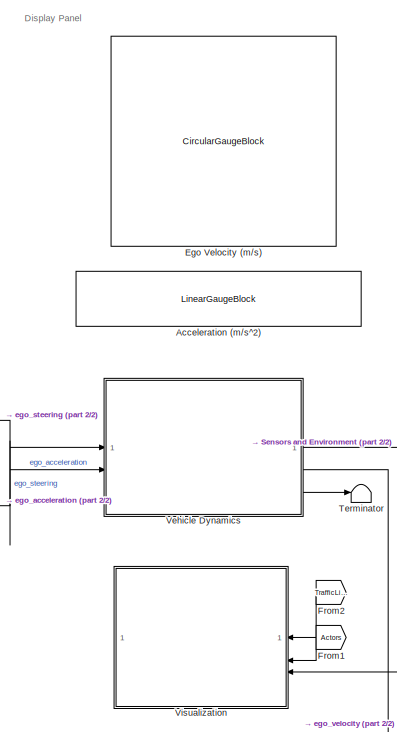
[diagram: root canvas - part 1/2, right side, full height]
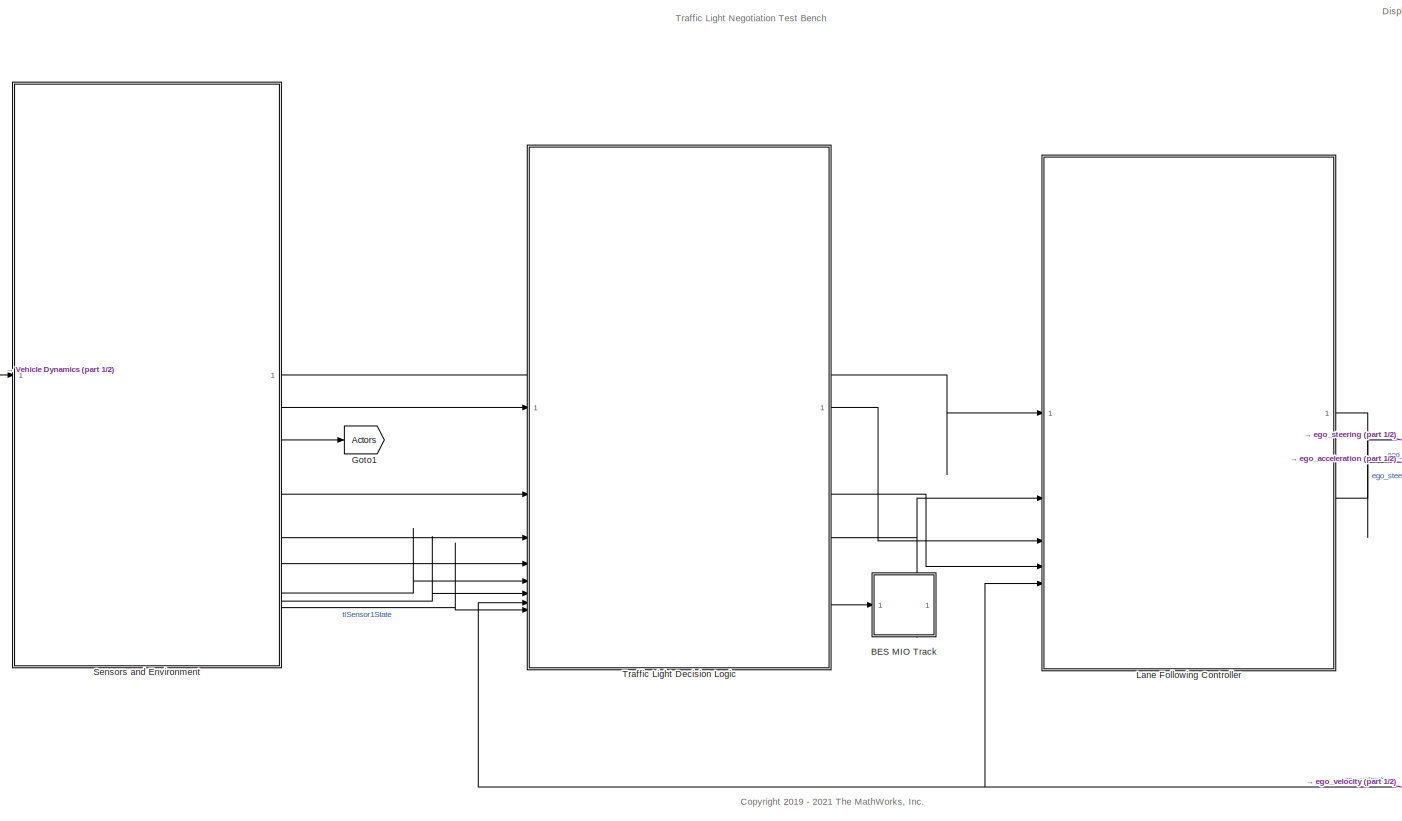
[diagram: root canvas - part 2/2, most of the canvas]
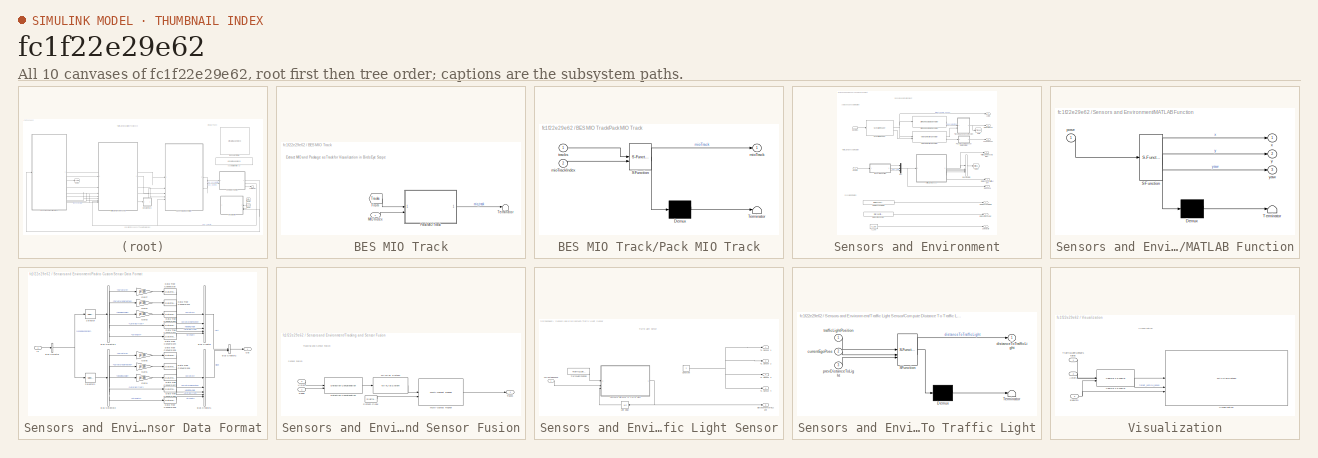
[diagram: thumbnail index - all 10 canvases of the model, root first then tree order]
MODEL slx_fc1f22e29e62
KIND model
CONFIG AbsTol = auto
CONFIG EnableMultiTasking = on
CONFIG FixedStep = 0.001
CONFIG MaxStep = auto
CONFIG MinStep = auto
CONFIG RelTol = 1e-8
CONFIG SampleTimeConstraint = Unconstrained
CONFIG SolverName = ode23tb
CONFIG StartTime = 0.0
CONFIG StopTime = scenario.StopTime
WORKSPACE source: mxarray member
WORKSPACE green = 'green'
BLOCK [LinearGaugeBlock] Acceleration (m//s^2)
  LabelPosition = Hide
  ScaleMax = 6
  ScaleMin = -6
BLOCK [SubSystem] BES MIO Track
BLOCK [From] BES MIO Track/From
  GotoTag = Tracks
  TagVisibility = global
BLOCK [Inport] BES MIO Track/MIO Index
BLOCK [SubSystem] BES MIO Track/Pack MIO Track
  ErrorFcn = Stateflow.Translate.translate
  PermitHierarchicalResolution = ExplicitOnly
  SFBlockType = MATLAB Function
  TreatAsAtomicUnit = on
BLOCK [Demux] BES MIO Track/Pack MIO Track/ Demux 
  Outputs = 1
BLOCK [S-Function] BES MIO Track/Pack MIO Track/ SFunction 
  EnableBusSupport = on
  FunctionName = sf_sfun
  PortCounts = [2 2]
  SFcnIsStateOwnerBlock = off
  SFunctionDeploymentMode = off
  Tag = Stateflow S-Function 1
BLOCK [Terminator] BES MIO Track/Pack MIO Track/ Terminator 
BLOCK [Outport] BES MIO Track/Pack MIO Track/mioTrack
  VectorParamsAs1DForOutWhenUnconnected = off
BLOCK [Inport] BES MIO Track/Pack MIO Track/mioTrackIndex
  Port = 2
BLOCK [Inport] BES MIO Track/Pack MIO Track/tracks
BLOCK [Terminator] BES MIO Track/Terminator
BLOCK [CircularGaugeBlock] Ego Velocity (m//s)
  LabelPosition = Hide
  ScaleMax = 50
BLOCK [From] From1
  GotoTag = Actors
  NameLocation = top
BLOCK [From] From2
  GotoTag = TrafficLightGroupDetections
  NameLocation = top
  TagVisibility = global
BLOCK [Goto] Goto1
  GotoTag = Actors
BLOCK [ModelReference] Lane Following Controller
  ModelNameDialog = LaneFollowingController.slx
  ModelReferenceVersion = 6.1
  PortSchema = {"entries":[{"content":{"sides":[{"content":{"connectorIds":["In1","In2","In4","In3","In5"]},"type":"ConnectorPlacement.EquallySpacedRectSide","uuid":"258a64d3-b85d-4414-a7dd-6950fa9dc812"},{"content":{"connectorIds":["Out1","Out2"],"side":"RIGHT"},"type":"ConnectorPlacement.EquallySpacedRectSide","uuid":"eccca8be-1d69-4bb6-a162-74a40ef18f77"},{"content":{"connectorIds":[],"side":"TOP"},"type":"Co...<+271ch>
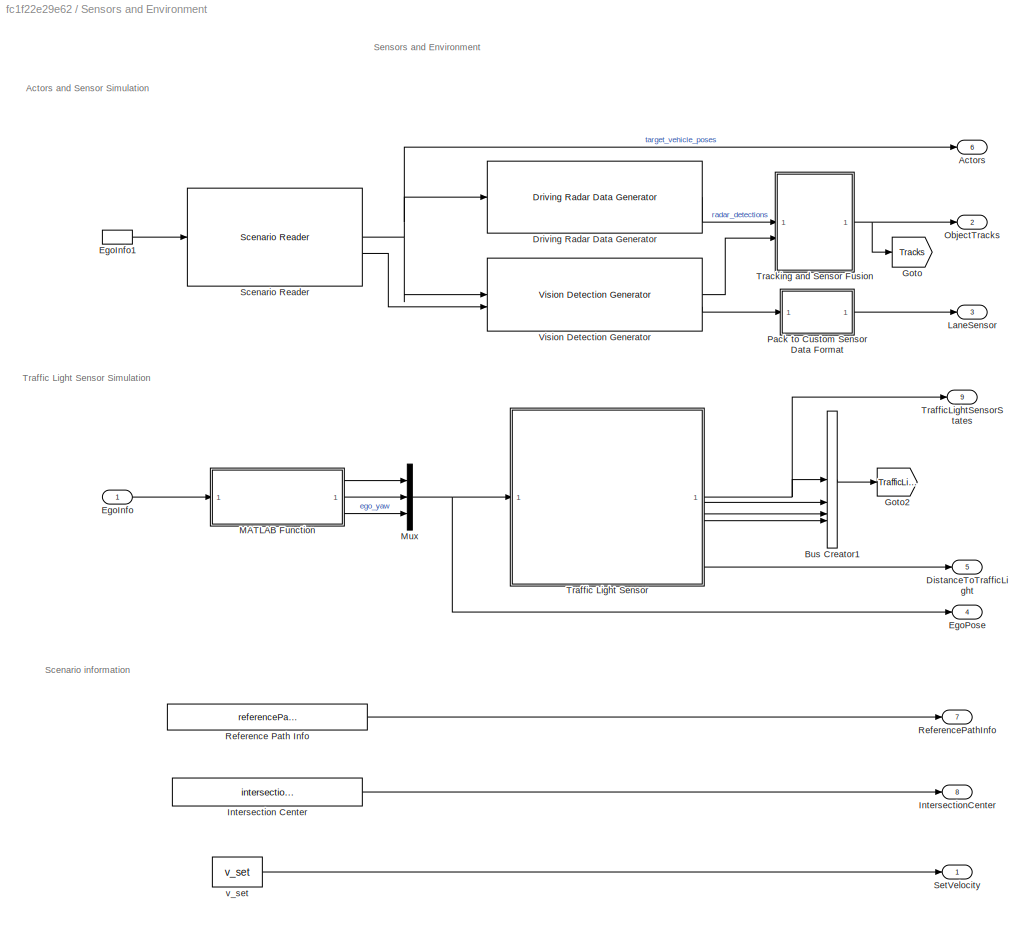
BLOCK [SubSystem] Sensors and Environment
BLOCK [Outport] Sensors and Environment/Actors
  Port = 6
BLOCK [BusCreator] Sensors and Environment/Bus Creator1
  DisplayOption = bar
  InheritFromInputs = on
  Inputs = 4
BLOCK [Outport] Sensors and Environment/DistanceToTrafficLight
  Port = 5
BLOCK [Reference] Sensors and Environment/Driving Radar Data Generator  REF=drivingscenarioandsensors/Driving Radar Data Generator
  SourceBlock = drivingscenarioandsensors/Driving Radar Data Generator
  SourceType = drivingRadarDataGenerator
BLOCK [Inport] Sensors and Environment/EgoInfo
BLOCK [InportShadow] Sensors and Environment/EgoInfo1
BLOCK [Outport] Sensors and Environment/EgoPose
  Port = 4
BLOCK [Goto] Sensors and Environment/Goto
  GotoTag = Tracks
  TagVisibility = global
BLOCK [Goto] Sensors and Environment/Goto2
  GotoTag = TrafficLightGroupDetections
  TagVisibility = global
BLOCK [Constant] Sensors and Environment/Intersection Center
  AttributesFormatString = ------------------------------\n   Value = %<Value>
  SampleTime = Ts
  Value = intersectionInfo.intersectionCenter
BLOCK [Outport] Sensors and Environment/IntersectionCenter
  Port = 8
BLOCK [Outport] Sensors and Environment/LaneSensor
  Port = 3
  VectorParamsAs1DForOutWhenUnconnected = off
BLOCK [SubSystem] Sensors and Environment/MATLAB Function
  ErrorFcn = Stateflow.Translate.translate
  PermitHierarchicalResolution = ExplicitOnly
  SFBlockType = MATLAB Function
  TreatAsAtomicUnit = on
BLOCK [Demux] Sensors and Environment/MATLAB Function/ Demux 
  Outputs = 1
BLOCK [S-Function] Sensors and Environment/MATLAB Function/ SFunction 
  EnableBusSupport = on
  FunctionName = sf_sfun
  PortCounts = [1 4]
  SFcnIsStateOwnerBlock = off
  SFunctionDeploymentMode = off
  Tag = Stateflow S-Function 2
BLOCK [Terminator] Sensors and Environment/MATLAB Function/ Terminator 
BLOCK [Inport] Sensors and Environment/MATLAB Function/pose
BLOCK [Outport] Sensors and Environment/MATLAB Function/x
BLOCK [Outport] Sensors and Environment/MATLAB Function/y
  Port = 2
BLOCK [Outport] Sensors and Environment/MATLAB Function/yaw
  Port = 3
BLOCK [Mux] Sensors and Environment/Mux
  DisplayOption = bar
  Inputs = 3
BLOCK [Outport] Sensors and Environment/ObjectTracks
  Port = 2
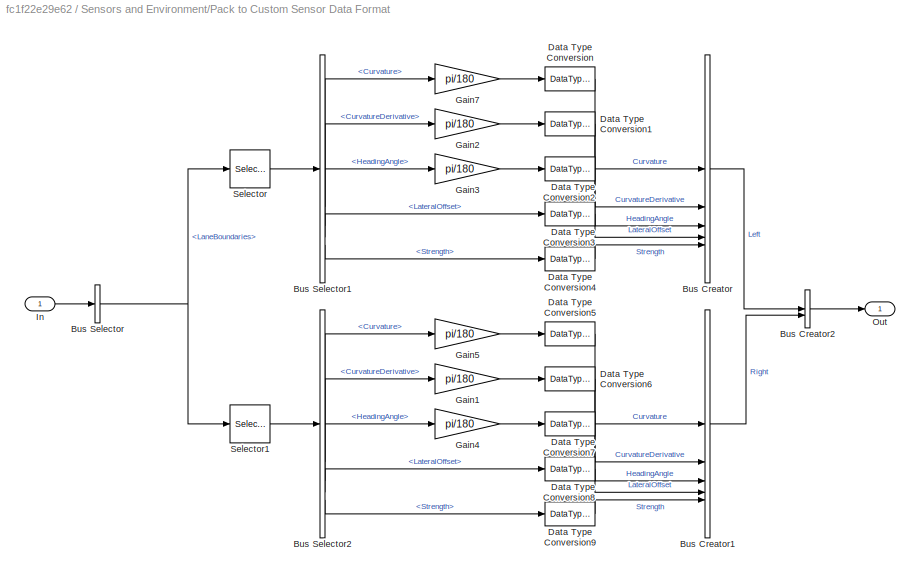
BLOCK [SubSystem] Sensors and Environment/Pack to Custom Sensor Data Format
BLOCK [BusCreator] Sensors and Environment/Pack to Custom Sensor Data Format/Bus Creator
  DisplayOption = bar
  InheritFromInputs = on
  Inputs = Curvature,CurvatureDerivative,HeadingAngle,LateralOffset,Strength
  OutDataTypeStr = Bus: LaneSensorBoundaries
BLOCK [BusCreator] Sensors and Environment/Pack to Custom Sensor Data Format/Bus Creator1
  DisplayOption = bar
  InheritFromInputs = on
  Inputs = Curvature,CurvatureDerivative,HeadingAngle,LateralOffset,Strength
  OutDataTypeStr = Bus: LaneSensorBoundaries
BLOCK [BusCreator] Sensors and Environment/Pack to Custom Sensor Data Format/Bus Creator2
  DisplayOption = bar
  InheritFromInputs = on
  Inputs = Left,Right
  OutDataTypeStr = Bus: LaneSensor
BLOCK [BusSelector] Sensors and Environment/Pack to Custom Sensor Data Format/Bus Selector
  OutputSignals = LaneBoundaries
BLOCK [BusSelector] Sensors and Environment/Pack to Custom Sensor Data Format/Bus Selector1
  OutputSignals = Curvature,CurvatureDerivative,HeadingAngle,LateralOffset,Strength
BLOCK [BusSelector] Sensors and Environment/Pack to Custom Sensor Data Format/Bus Selector2
  OutputSignals = Curvature,CurvatureDerivative,HeadingAngle,LateralOffset,Strength
BLOCK [DataTypeConversion] Sensors and Environment/Pack to Custom Sensor Data Format/Data Type Conversion
  RndMeth = Floor
  SaturateOnIntegerOverflow = off
BLOCK [DataTypeConversion] Sensors and Environment/Pack to Custom Sensor Data Format/Data Type Conversion1
  RndMeth = Floor
  SaturateOnIntegerOverflow = off
BLOCK [DataTypeConversion] Sensors and Environment/Pack to Custom Sensor Data Format/Data Type Conversion2
  RndMeth = Floor
  SaturateOnIntegerOverflow = off
BLOCK [DataTypeConversion] Sensors and Environment/Pack to Custom Sensor Data Format/Data Type Conversion3
  RndMeth = Floor
  SaturateOnIntegerOverflow = off
BLOCK [DataTypeConversion] Sensors and Environment/Pack to Custom Sensor Data Format/Data Type Conversion4
  RndMeth = Floor
  SaturateOnIntegerOverflow = off
BLOCK [DataTypeConversion] Sensors and Environment/Pack to Custom Sensor Data Format/Data Type Conversion5
  RndMeth = Floor
  SaturateOnIntegerOverflow = off
BLOCK [DataTypeConversion] Sensors and Environment/Pack to Custom Sensor Data Format/Data Type Conversion6
  RndMeth = Floor
  SaturateOnIntegerOverflow = off
BLOCK [DataTypeConversion] Sensors and Environment/Pack to Custom Sensor Data Format/Data Type Conversion7
  RndMeth = Floor
  SaturateOnIntegerOverflow = off
BLOCK [DataTypeConversion] Sensors and Environment/Pack to Custom Sensor Data Format/Data Type Conversion8
  RndMeth = Floor
  SaturateOnIntegerOverflow = off
BLOCK [DataTypeConversion] Sensors and Environment/Pack to Custom Sensor Data Format/Data Type Conversion9
  RndMeth = Floor
  SaturateOnIntegerOverflow = off
BLOCK [Gain] Sensors and Environment/Pack to Custom Sensor Data Format/Gain1
  Gain = pi/180
BLOCK [Gain] Sensors and Environment/Pack to Custom Sensor Data Format/Gain2
  Gain = pi/180
BLOCK [Gain] Sensors and Environment/Pack to Custom Sensor Data Format/Gain3
  Gain = pi/180
BLOCK [Gain] Sensors and Environment/Pack to Custom Sensor Data Format/Gain4
  Gain = pi/180
BLOCK [Gain] Sensors and Environment/Pack to Custom Sensor Data Format/Gain5
  Gain = pi/180
BLOCK [Gain] Sensors and Environment/Pack to Custom Sensor Data Format/Gain7
  Gain = pi/180
BLOCK [Inport] Sensors and Environment/Pack to Custom Sensor Data Format/In
BLOCK [Outport] Sensors and Environment/Pack to Custom Sensor Data Format/Out
  VectorParamsAs1DForOutWhenUnconnected = off
BLOCK [Selector] Sensors and Environment/Pack to Custom Sensor Data Format/Selector
  IndexOptions = Index vector (dialog)
  Indices = 1
  InputPortWidth = 2
  OutputSizes = 1
BLOCK [Selector] Sensors and Environment/Pack to Custom Sensor Data Format/Selector1
  IndexOptions = Index vector (dialog)
  Indices = 2
  InputPortWidth = 2
  OutputSizes = 1
BLOCK [Constant] Sensors and Environment/Reference Path Info
  AttributesFormatString = --------------------------\n  Value = %<Value>
  OutDataTypeStr = Bus: ReferencePathInfo
  SampleTime = Ts
  Value = referencePathInfo
BLOCK [Outport] Sensors and Environment/ReferencePathInfo
  Port = 7
BLOCK [Reference] Sensors and Environment/Scenario Reader  REF=drivingscenarioandsensors/Scenario Reader
  SourceBlock = drivingscenarioandsensors/Scenario Reader
  SourceType = driving.scenario.internal.ScenarioReader
BLOCK [Outport] Sensors and Environment/SetVelocity
BLOCK [SubSystem] Sensors and Environment/Tracking and Sensor Fusion
  RTWFileNameOpts = Use function name
  RTWSystemCode = Reusable function
  SystemSampleTime = Ts
  TreatAsAtomicUnit = on
BLOCK [Reference] Sensors and Environment/Tracking and Sensor Fusion/Detection Concatenation  REF=trackingutilitieslib/Detection Concatenation
  SourceBlock = trackingutilitieslib/Detection Concatenation
  SourceType = matlabshared.tracking.internal.DetectionConcatenation
BLOCK [MATLABSystem] Sensors and Environment/Tracking and Sensor Fusion/MATLAB System
  BusName = BusVehicleSizeDetections
  BusNameSource = Auto
  MaskDisplay = disp('helperVehicleSize');\nport_label('input',1,'In');\nport_label('output',1,'Out');
  MaskType = helperVehicleSize
  SimulateUsing = Interpreted execution
  System = helperVehicleSize
  VehicleSize = vehicleLength
BLOCK [Reference] Sensors and Environment/Tracking and Sensor Fusion/Multi-Object Tracker  REF=drivinglib/Multi-Object Tracker
  SourceBlock = drivinglib/Multi-Object Tracker
  SourceType = multiObjectTracker
BLOCK [Inport] Sensors and Environment/Tracking and Sensor Fusion/Radar
  BusOutputAsStruct = on
  PortDimensions = [1 1]
BLOCK [DigitalClock] Sensors and Environment/Tracking and Sensor Fusion/System Clock
  SampleTime = -1
BLOCK [Outport] Sensors and Environment/Tracking and Sensor Fusion/Tracks
  BusOutputAsStruct = on
  PortDimensions = [1 1]
  SamplingMode = Sample based
  SignalType = real
  VectorParamsAs1DForOutWhenUnconnected = off
BLOCK [Inport] Sensors and Environment/Tracking and Sensor Fusion/Vision
  BusOutputAsStruct = on
  Port = 2
  PortDimensions = [1 1]
BLOCK [SubSystem] Sensors and Environment/Traffic Light Sensor
BLOCK [SubSystem] Sensors and Environment/Traffic Light Sensor/Compute Distance To Traffic Light
  ErrorFcn = Stateflow.Translate.translate
  PermitHierarchicalResolution = ExplicitOnly
  SFBlockType = MATLAB Function
  TreatAsAtomicUnit = on
BLOCK [Demux] Sensors and Environment/Traffic Light Sensor/Compute Distance To Traffic Light/ Demux 
  Outputs = 1
BLOCK [S-Function] Sensors and Environment/Traffic Light Sensor/Compute Distance To Traffic Light/ SFunction 
  EnableBusSupport = on
  FunctionName = sf_sfun
  Parameters = minTLDist
  PortCounts = [3 2]
  SFcnIsStateOwnerBlock = off
  SFunctionDeploymentMode = off
  Tag = Stateflow S-Function 7
BLOCK [Terminator] Sensors and Environment/Traffic Light Sensor/Compute Distance To Traffic Light/ Terminator 
BLOCK [Inport] Sensors and Environment/Traffic Light Sensor/Compute Distance To Traffic Light/currentEgoPose
  Port = 2
BLOCK [Outport] Sensors and Environment/Traffic Light Sensor/Compute Distance To Traffic Light/distanceToTrafficLight
BLOCK [Inport] Sensors and Environment/Traffic Light Sensor/Compute Distance To Traffic Light/prevDistanceToLight
  Port = 3
BLOCK [Inport] Sensors and Environment/Traffic Light Sensor/Compute Distance To Traffic Light/trafficLightPosition
BLOCK [Constant] Sensors and Environment/Traffic Light Sensor/Constant
  OutDataTypeStr = double
  Value = 2
BLOCK [Outport] Sensors and Environment/Traffic Light Sensor/TL Sensor 1
BLOCK [Outport] Sensors and Environment/Traffic Light Sensor/TL Sensor 2
  Port = 2
BLOCK [Outport] Sensors and Environment/Traffic Light Sensor/TL Sensor 3
  Port = 3
BLOCK [Outport] Sensors and Environment/Traffic Light Sensor/TL Sensor 4
  Port = 4
BLOCK [Constant] Sensors and Environment/Traffic Light Sensor/TrafficLightPosition
  Value = TrafficLightPosition
BLOCK [UnitDelay] Sensors and Environment/Traffic Light Sensor/Unit Delay
  HasFrameUpgradeWarning = on
  InitialCondition = 100
  NameLocation = top
  SampleTime = -1
BLOCK [Inport] Sensors and Environment/Traffic Light Sensor/currentEgoPose
BLOCK [Outport] Sensors and Environment/Traffic Light Sensor/distanceToTrafficLight
  Port = 5
BLOCK [Outport] Sensors and Environment/TrafficLightSensorStates
  Port = 9
BLOCK [Reference] Sensors and Environment/Vision Detection Generator  REF=drivingscenarioandsensors/Vision Detection Generator
  SourceBlock = drivingscenarioandsensors/Vision Detection Generator
  SourceType = visionDetectionGenerator
BLOCK [Constant] Sensors and Environment/v_set
  Value = v_set
BLOCK [Terminator] Terminator
BLOCK [ModelReference] Traffic Light Decision Logic
  ModelNameDialog = TrafficLightDecisionLogic
  ModelReferenceVersion = 5.1
  PortSchema = {"entries":[{"content":{"sides":[{"content":{"connectorIds":["In1","In2","In3","In4","In5","In6","In8","In7"]},"type":"ConnectorPlacement.EquallySpacedRectSide","uuid":"580d7771-a392-489d-ba06-e0a23417c921"},{"content":{"connectorIds":["Out3","Out2","Out1","Out4"],"side":"RIGHT"},"type":"ConnectorPlacement.EquallySpacedRectSide","uuid":"34dc41bc-0d5b-42f7-ac4d-a18cefff1604"},{"content":{"connector...<+447ch>
BLOCK [SubSystem] Vehicle Dynamics
  ReferencedSubsystem = BicycleWithForceInput
BLOCK [SubSystem] Visualization
BLOCK [Inport] Visualization/Actors
  Port = 2
BLOCK [Inport] Visualization/EgoInfo
  Port = 3
BLOCK [Inport] Visualization/TrafficLightSensorStates
BLOCK [Reference] Visualization/Vehicle To World  REF=drivingscenarioandsensors/Vehicle To World
  SourceBlock = drivingscenarioandsensors/Vehicle To World
  SourceType = driving.scenario.internal.VehicleToWorld
BLOCK [MATLABSystem] Visualization/Visualization
  MaskDisplay = disp('HelperTrafficLightNegotiationVisualization');\nport_label('input',1,'TrafficLightSensorStates');\nport_label('input',2,'TargetPoses');\nport_label('input',3,'EgoInfo');
  MaskType = HelperTrafficLightNegotiationVisualization
  System = HelperTrafficLightNegotiationVisualization
ANNOTATION (root): <copyright redacted>
ANNOTATION (root): Traffic Light Negotiation Test Bench
ANNOTATION (root): Display Panel
ANNOTATION BES MIO Track: Extract MIO and Package as Track for Visualization in Birds Eye Scope
ANNOTATION Sensors and Environment: Sensors and Environment
ANNOTATION Sensors and Environment: Actors and Sensor Simulation
ANNOTATION Sensors and Environment: Scenario information
ANNOTATION Sensors and Environment: Traffic Light Sensor Simulation
ANNOTATION Sensors and Environment/Tracking and Sensor Fusion: Tracking and Sensor Fusion
ANNOTATION Sensors and Environment/Tracking and Sensor Fusion: Sensor Fusion
ANNOTATION Sensors and Environment/Traffic Light Sensor: Traffic Light Sensor
ANNOTATION Visualization: Visualization
LINE BES MIO Track/From:1 -> BES MIO Track/Pack MIO Track:1
LINE BES MIO Track/MIO Index:1 -> BES MIO Track/Pack MIO Track:2
LINE BES MIO Track/Pack MIO Track:1 -> BES MIO Track/Terminator:1
LINE From1:1 -> Visualization:2
LINE From2:1 -> Visualization:1
LINE Lane Following Controller:1 -> Vehicle Dynamics:1
LINE Lane Following Controller:2 -> Vehicle Dynamics:2
LINE Sensors and Environment/Bus Creator1:1 -> Sensors and Environment/Goto2:1
LINE Sensors and Environment/Driving Radar Data Generator:1 -> Sensors and Environment/Tracking and Sensor Fusion:1
LINE Sensors and Environment/EgoInfo1:1 -> Sensors and Environment/Scenario Reader:1
LINE Sensors and Environment/EgoInfo:1 -> Sensors and Environment/MATLAB Function:1
LINE Sensors and Environment/Intersection Center:1 -> Sensors and Environment/IntersectionCenter:1
LINE Sensors and Environment/MATLAB Function:1 -> Sensors and Environment/Mux:1
LINE Sensors and Environment/MATLAB Function:2 -> Sensors and Environment/Mux:2
LINE Sensors and Environment/MATLAB Function:3 -> Sensors and Environment/Mux:3
NET Sensors and Environment/Mux:1 -> Sensors and Environment/EgoPose:1, Sensors and Environment/Traffic Light Sensor:1
LINE Sensors and Environment/Pack to Custom Sensor Data Format/Bus Creator1:1 -> Sensors and Environment/Pack to Custom Sensor Data Format/Bus Creator2:2
LINE Sensors and Environment/Pack to Custom Sensor Data Format/Bus Creator2:1 -> Sensors and Environment/Pack to Custom Sensor Data Format/Out:1
LINE Sensors and Environment/Pack to Custom Sensor Data Format/Bus Creator:1 -> Sensors and Environment/Pack to Custom Sensor Data Format/Bus Creator2:1
LINE Sensors and Environment/Pack to Custom Sensor Data Format/Bus Selector1:1 -> Sensors and Environment/Pack to Custom Sensor Data Format/Gain7:1
LINE Sensors and Environment/Pack to Custom Sensor Data Format/Bus Selector1:2 -> Sensors and Environment/Pack to Custom Sensor Data Format/Gain2:1
LINE Sensors and Environment/Pack to Custom Sensor Data Format/Bus Selector1:3 -> Sensors and Environment/Pack to Custom Sensor Data Format/Gain3:1
LINE Sensors and Environment/Pack to Custom Sensor Data Format/Bus Selector1:4 -> Sensors and Environment/Pack to Custom Sensor Data Format/Data Type Conversion3:1
LINE Sensors and Environment/Pack to Custom Sensor Data Format/Bus Selector1:5 -> Sensors and Environment/Pack to Custom Sensor Data Format/Data Type Conversion4:1
LINE Sensors and Environment/Pack to Custom Sensor Data Format/Bus Selector2:1 -> Sensors and Environment/Pack to Custom Sensor Data Format/Gain5:1
LINE Sensors and Environment/Pack to Custom Sensor Data Format/Bus Selector2:2 -> Sensors and Environment/Pack to Custom Sensor Data Format/Gain1:1
LINE Sensors and Environment/Pack to Custom Sensor Data Format/Bus Selector2:3 -> Sensors and Environment/Pack to Custom Sensor Data Format/Gain4:1
LINE Sensors and Environment/Pack to Custom Sensor Data Format/Bus Selector2:4 -> Sensors and Environment/Pack to Custom Sensor Data Format/Data Type Conversion8:1
LINE Sensors and Environment/Pack to Custom Sensor Data Format/Bus Selector2:5 -> Sensors and Environment/Pack to Custom Sensor Data Format/Data Type Conversion9:1
NET Sensors and Environment/Pack to Custom Sensor Data Format/Bus Selector:1 -> Sensors and Environment/Pack to Custom Sensor Data Format/Selector1:1, Sensors and Environment/Pack to Custom Sensor Data Format/Selector:1
LINE Sensors and Environment/Pack to Custom Sensor Data Format/Data Type Conversion1:1 -> Sensors and Environment/Pack to Custom Sensor Data Format/Bus Creator:2
LINE Sensors and Environment/Pack to Custom Sensor Data Format/Data Type Conversion2:1 -> Sensors and Environment/Pack to Custom Sensor Data Format/Bus Creator:3
LINE Sensors and Environment/Pack to Custom Sensor Data Format/Data Type Conversion3:1 -> Sensors and Environment/Pack to Custom Sensor Data Format/Bus Creator:4
LINE Sensors and Environment/Pack to Custom Sensor Data Format/Data Type Conversion4:1 -> Sensors and Environment/Pack to Custom Sensor Data Format/Bus Creator:5
LINE Sensors and Environment/Pack to Custom Sensor Data Format/Data Type Conversion5:1 -> Sensors and Environment/Pack to Custom Sensor Data Format/Bus Creator1:1
LINE Sensors and Environment/Pack to Custom Sensor Data Format/Data Type Conversion6:1 -> Sensors and Environment/Pack to Custom Sensor Data Format/Bus Creator1:2
LINE Sensors and Environment/Pack to Custom Sensor Data Format/Data Type Conversion7:1 -> Sensors and Environment/Pack to Custom Sensor Data Format/Bus Creator1:3
LINE Sensors and Environment/Pack to Custom Sensor Data Format/Data Type Conversion8:1 -> Sensors and Environment/Pack to Custom Sensor Data Format/Bus Creator1:4
LINE Sensors and Environment/Pack to Custom Sensor Data Format/Data Type Conversion9:1 -> Sensors and Environment/Pack to Custom Sensor Data Format/Bus Creator1:5
LINE Sensors and Environment/Pack to Custom Sensor Data Format/Data Type Conversion:1 -> Sensors and Environment/Pack to Custom Sensor Data Format/Bus Creator:1
LINE Sensors and Environment/Pack to Custom Sensor Data Format/Gain1:1 -> Sensors and Environment/Pack to Custom Sensor Data Format/Data Type Conversion6:1
LINE Sensors and Environment/Pack to Custom Sensor Data Format/Gain2:1 -> Sensors and Environment/Pack to Custom Sensor Data Format/Data Type Conversion1:1
LINE Sensors and Environment/Pack to Custom Sensor Data Format/Gain3:1 -> Sensors and Environment/Pack to Custom Sensor Data Format/Data Type Conversion2:1
LINE Sensors and Environment/Pack to Custom Sensor Data Format/Gain4:1 -> Sensors and Environment/Pack to Custom Sensor Data Format/Data Type Conversion7:1
LINE Sensors and Environment/Pack to Custom Sensor Data Format/Gain5:1 -> Sensors and Environment/Pack to Custom Sensor Data Format/Data Type Conversion5:1
LINE Sensors and Environment/Pack to Custom Sensor Data Format/Gain7:1 -> Sensors and Environment/Pack to Custom Sensor Data Format/Data Type Conversion:1
LINE Sensors and Environment/Pack to Custom Sensor Data Format/In:1 -> Sensors and Environment/Pack to Custom Sensor Data Format/Bus Selector:1
LINE Sensors and Environment/Pack to Custom Sensor Data Format/Selector1:1 -> Sensors and Environment/Pack to Custom Sensor Data Format/Bus Selector2:1
LINE Sensors and Environment/Pack to Custom Sensor Data Format/Selector:1 -> Sensors and Environment/Pack to Custom Sensor Data Format/Bus Selector1:1
LINE Sensors and Environment/Pack to Custom Sensor Data Format:1 -> Sensors and Environment/LaneSensor:1
LINE Sensors and Environment/Reference Path Info:1 -> Sensors and Environment/ReferencePathInfo:1
NET Sensors and Environment/Scenario Reader:1 -> Sensors and Environment/Actors:1, Sensors and Environment/Driving Radar Data Generator:1, Sensors and Environment/Vision Detection Generator:1
LINE Sensors and Environment/Scenario Reader:2 -> Sensors and Environment/Vision Detection Generator:2
LINE Sensors and Environment/Tracking and Sensor Fusion/Detection Concatenation:1 -> Sensors and Environment/Tracking and Sensor Fusion/MATLAB System:1
LINE Sensors and Environment/Tracking and Sensor Fusion/MATLAB System:1 -> Sensors and Environment/Tracking and Sensor Fusion/Multi-Object Tracker:1
LINE Sensors and Environment/Tracking and Sensor Fusion/Multi-Object Tracker:1 -> Sensors and Environment/Tracking and Sensor Fusion/Tracks:1
LINE Sensors and Environment/Tracking and Sensor Fusion/Radar:1 -> Sensors and Environment/Tracking and Sensor Fusion/Detection Concatenation:2
LINE Sensors and Environment/Tracking and Sensor Fusion/System Clock:1 -> Sensors and Environment/Tracking and Sensor Fusion/Multi-Object Tracker:2
LINE Sensors and Environment/Tracking and Sensor Fusion/Vision:1 -> Sensors and Environment/Tracking and Sensor Fusion/Detection Concatenation:1
NET Sensors and Environment/Tracking and Sensor Fusion:1 -> Sensors and Environment/Goto:1, Sensors and Environment/ObjectTracks:1
NET Sensors and Environment/Traffic Light Sensor/Compute Distance To Traffic Light:1 -> Sensors and Environment/Traffic Light Sensor/Unit Delay:1, Sensors and Environment/Traffic Light Sensor/distanceToTrafficLight:1
NET Sensors and Environment/Traffic Light Sensor/Constant:1 -> Sensors and Environment/Traffic Light Sensor/TL Sensor 1:1, Sensors and Environment/Traffic Light Sensor/TL Sensor 2:1, Sensors and Environment/Traffic Light Sensor/TL Sensor 3:1, Sensors and Environment/Traffic Light Sensor/TL Sensor 4:1
LINE Sensors and Environment/Traffic Light Sensor/TrafficLightPosition:1 -> Sensors and Environment/Traffic Light Sensor/Compute Distance To Traffic Light:1
LINE Sensors and Environment/Traffic Light Sensor/Unit Delay:1 -> Sensors and Environment/Traffic Light Sensor/Compute Distance To Traffic Light:3
LINE Sensors and Environment/Traffic Light Sensor/currentEgoPose:1 -> Sensors and Environment/Traffic Light Sensor/Compute Distance To Traffic Light:2
NET Sensors and Environment/Traffic Light Sensor:1 -> Sensors and Environment/Bus Creator1:1, Sensors and Environment/TrafficLightSensorStates:1
LINE Sensors and Environment/Traffic Light Sensor:2 -> Sensors and Environment/Bus Creator1:2
LINE Sensors and Environment/Traffic Light Sensor:3 -> Sensors and Environment/Bus Creator1:3
LINE Sensors and Environment/Traffic Light Sensor:4 -> Sensors and Environment/Bus Creator1:4
LINE Sensors and Environment/Traffic Light Sensor:5 -> Sensors and Environment/DistanceToTrafficLight:1
LINE Sensors and Environment/Vision Detection Generator:1 -> Sensors and Environment/Tracking and Sensor Fusion:2
LINE Sensors and Environment/Vision Detection Generator:2 -> Sensors and Environment/Pack to Custom Sensor Data Format:1
LINE Sensors and Environment/v_set:1 -> Sensors and Environment/SetVelocity:1
LINE Sensors and Environment:1 -> Lane Following Controller:1
LINE Sensors and Environment:2 -> Traffic Light Decision Logic:1
LINE Sensors and Environment:3 -> Traffic Light Decision Logic:2
LINE Sensors and Environment:4 -> Traffic Light Decision Logic:3
LINE Sensors and Environment:5 -> Traffic Light Decision Logic:4
LINE Sensors and Environment:6 -> Goto1:1
LINE Sensors and Environment:7 -> Traffic Light Decision Logic:5
LINE Sensors and Environment:8 -> Traffic Light Decision Logic:6
LINE Sensors and Environment:9 -> Traffic Light Decision Logic:8
LINE Traffic Light Decision Logic:1 -> Lane Following Controller:3
LINE Traffic Light Decision Logic:2 -> Lane Following Controller:4
LINE Traffic Light Decision Logic:3 -> Lane Following Controller:2
LINE Traffic Light Decision Logic:4 -> BES MIO Track:1
NET Vehicle Dynamics:1 -> Sensors and Environment:1, Visualization:3
NET Vehicle Dynamics:2 -> Lane Following Controller:5, Traffic Light Decision Logic:7
LINE Vehicle Dynamics:3 -> Terminator:1
LINE Visualization/Actors:1 -> Visualization/Vehicle To World:1
NET Visualization/EgoInfo:1 -> Visualization/Vehicle To World:2, Visualization/Visualization:3
LINE Visualization/TrafficLightSensorStates:1 -> Visualization/Visualization:1
LINE Visualization/Vehicle To World:1 -> Visualization/Visualization:2
note: NET lines group one-source signal fan-out (src -> all destinations, sorted); 1:1 wires keep LINE
CHART BES MIO Track/Pack MIO Track states=1 transitions=1
  STATE_LABEL 'eML_blk_kernel()'
  STATE_LABEL 'SCRIPT:\nfunction mioTrack = fcn(tracks, mioTrackIndex)\n% Extract MIO track and package for visualization in Birds Eye Scope\n\nmioTrack = tracks;\n\nif mioTrackIndex > 0\n    % First track represents MIO\n    mioTrack.NumTracks = 1;\n    mioTrack.Tracks(1) = tracks.Tracks(mioTrackIndex);\nelse\n    % No valid MIO track\n    mioTrack.NumTracks = 0;\nend\n'
CHART Sensors and Environment/MATLAB Function states=1 transitions=1
  STATE_LABEL 'eML_blk_kernel()'
  STATE_LABEL "SCRIPT:\nfunction [x, y, yaw] = poseToSim(pose)\n\npos_Rr = pose.Position([1,2])';\ntheta = pose.Yaw;\n\npos_Cen = pos_Rr+[cosd(theta) sind(theta)]';\n\nx = pos_Cen(1);\ny = pos_Cen(2);\nyaw = pose.Yaw;\n"
CHART Sensors and Environment/Traffic Light Sensor/Compute Distance To Traffic Light states=1 transitions=1
  STATE_LABEL 'eML_blk_kernel()'
  STATE_LABEL 'SCRIPT:\nfunction distanceToTrafficLight   = computeDistanceToTrafficLight(trafficLightPosition, currentEgoPose, prevDistanceToLight, minTLDist)\n\n%computeDistanceToTrafficLight Compute distance to upcoming traffic light.\n\ndistanceToTrafficLight = ...\n    helperSLComputeDistanceToTrafficLight(trafficLightPosition, ...\n    currentEgoPose, prevDistanceToLight, minTLDist);\n\n'
CHART  states=0 transitions=0
CHART  states=0 transitions=0
CHART  states=0 transitions=0
